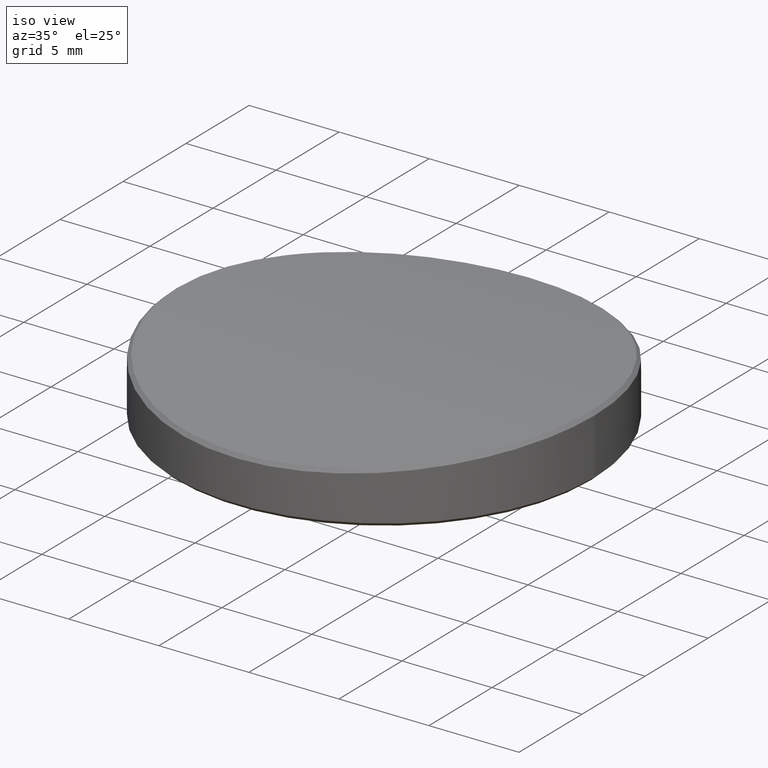
[diagram: clean part render]
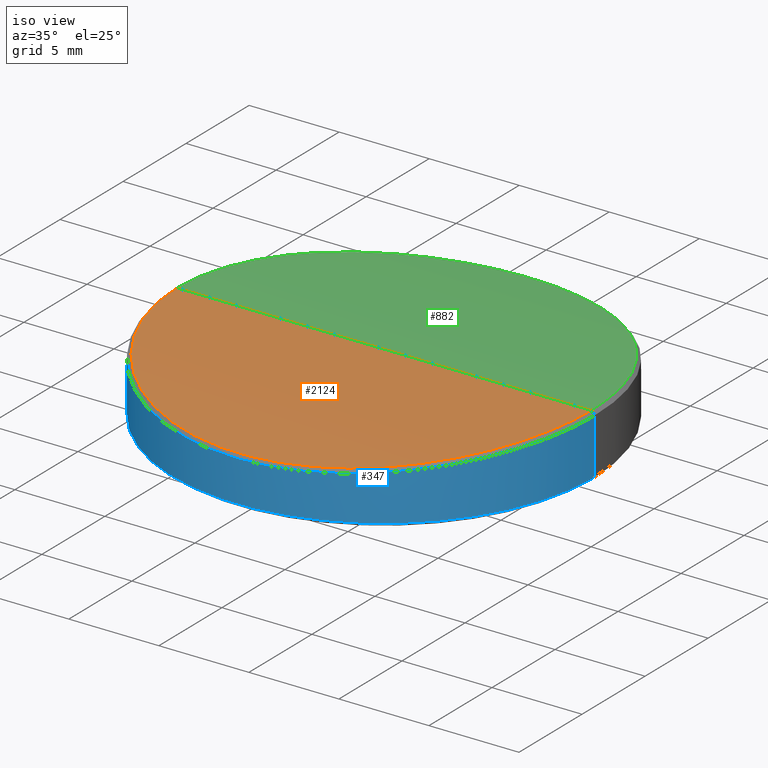
[diagram: same view with three faces highlighted in distinct colors, each labeled with its STEP entity id]
A machine part, iso view with three faces highlighted in distinct colors.
Their STEP definitions:

[orange] entity #2124 — the highlighted cylindrical surface (partial cylindrical patch) has radius 81.93 mm, axis along (-1, 0, 0).
#62 = CARTESIAN_POINT ( 'NONE',  ( -3.166787534546487315, -11.08405576851214747, 2.746504322996076830 ) ) ;
#75 = CARTESIAN_POINT ( 'NONE',  ( 3.694976091243800109, -10.92334738748209055, 2.768341207331649567 ) ) ;
#89 = CARTESIAN_POINT ( 'NONE',  ( 5.086193108349116976, -10.34108032025787693, 2.844514647406642283 ) ) ;
#104 = CARTESIAN_POINT ( 'NONE',  ( -9.145618621529175485, -7.029591892116717311, 3.200011211454527604 ) ) ;
#118 = CARTESIAN_POINT ( 'NONE',  ( -2.984743336003535585, -11.13470203556647142, 2.739567176630870016 ) ) ;
#143 = CARTESIAN_POINT ( 'NONE',  ( 10.31512535616933945, -5.110678495667301036, 3.340845388255832216 ) ) ;
#148 = VERTEX_POINT ( 'NONE', #1085 ) ;
#180 = CARTESIAN_POINT ( 'NONE',  ( 11.11120858916133081, -2.995880903165346165, 3.445709147812949791 ) ) ;
#257 = CARTESIAN_POINT ( 'NONE',  ( -11.10982310246942717, -2.983408312492825232, 3.445578503740484688 ) ) ;
#271 = CARTESIAN_POINT ( 'NONE',  ( 1.877616581813696062, -11.37965606006756580, 2.705608682983658309 ) ) ;
#276 = ORIENTED_EDGE ( 'NONE', *, *, #1288, .T. ) ;
#287 = CARTESIAN_POINT ( 'NONE',  ( -4.060779446366968415, -10.79205761989555157, 2.785950371712246465 ) ) ;
#303 = CARTESIAN_POINT ( 'NONE',  ( -5.754423608994962080, -9.988188992802237820, 2.888792633446322977 ) ) ;
#317 = CARTESIAN_POINT ( 'NONE',  ( -11.49999994336877585, -0.1894370794137846259, 3.499711432255955934 ) ) ;
#341 = CARTESIAN_POINT ( 'NONE',  ( 11.48363838108400259, -0.6641216445274203961, 3.497402897627376994 ) ) ;
#467 = CARTESIAN_POINT ( 'NONE',  ( -2.618095972084254708, -11.22701783858042468, 2.726850005739918092 ) ) ;
#468 = FACE_OUTER_BOUND ( 'NONE', #1466, .T. ) ;
#482 = CARTESIAN_POINT ( 'NONE',  ( -10.47848433368500487, -4.764806792910271760, 3.361783141797156649 ) ) ;
#494 = CARTESIAN_POINT ( 'NONE',  ( -6.080559062151471572, -9.792238414909938626, 2.912702393172920790 ) ) ;
#495 = CARTESIAN_POINT ( 'NONE',  ( 40.00000000000000000, 0.000000000000000000, -78.43028856774404289 ) ) ;
#509 = CARTESIAN_POINT ( 'NONE',  ( 6.999210375468472911, -9.154825614327062766, 2.986980769903395672 ) ) ;
#521 = CARTESIAN_POINT ( 'NONE',  ( -10.89510011129911504, -3.709116270637044188, 3.416518046638158168 ) ) ;
#528 = B_SPLINE_CURVE_WITH_KNOTS ( 'NONE', 3,
 ( #1812, #1631, #807, #1030, #625, #819 ),
 .UNSPECIFIED., .F., .F.,
 ( 4, 2, 4 ),
 ( 0.5000000000000000000, 0.5000033378842831944, 0.5000066757685662777 ),
 .UNSPECIFIED. ) ;
#558 = CARTESIAN_POINT ( 'NONE',  ( 11.34578812515183621, -1.891171919848278371, 3.478097991542052458 ) ) ;
#584 = CARTESIAN_POINT ( 'NONE',  ( 11.31351831689490872, -2.076273835732106221, 3.473608668760564289 ) ) ;
#625 = CARTESIAN_POINT ( 'NONE',  ( 11.49999999999877254, -8.109659296174740893E-05, 3.499711432255959931 ) ) ;
#667 = CARTESIAN_POINT ( 'NONE',  ( -11.40731840595100444, -1.508329513973756031, 3.486681677985403738 ) ) ;
#681 = CARTESIAN_POINT ( 'NONE',  ( -8.661288356244455144, -7.620778521943779360, 3.146260791982539828 ) ) ;
#694 = CARTESIAN_POINT ( 'NONE',  ( -11.46268467405747593, -0.9467897128733118173, 3.494454533960024811 ) ) ;
#708 = CARTESIAN_POINT ( 'NONE',  ( 6.076511657005669420, -9.794587769880095607, 2.912412592833559799 ) ) ;
#743 = CARTESIAN_POINT ( 'NONE',  ( 10.76619664654599617, -4.069540225816410839, 3.399322707548555034 ) ) ;
#807 = CARTESIAN_POINT ( 'NONE',  ( 11.49999999572943032, -0.0003356045594075980783, 3.499711431608670598 ) ) ;
#819 = CARTESIAN_POINT ( 'NONE',  ( 11.50000000000620837, 3.524304040865959383E-09, 3.499711432255959931 ) ) ;
#857 = CARTESIAN_POINT ( 'NONE',  ( -11.20113405964385045, -2.617923438579657258, 3.458079414138407692 ) ) ;
#871 = CARTESIAN_POINT ( 'NONE',  ( 4.047360437463376925, -10.79722611531312459, 2.785265053839192539 ) ) ;
#895 = CARTESIAN_POINT ( 'NONE',  ( 0.3694301487547045348, -11.52836342652834922, 2.684578976726152977 ) ) ;
#899 = ORIENTED_EDGE ( 'NONE', *, *, #1685, .T. ) ;
#907 = CARTESIAN_POINT ( 'NONE',  ( 4.571233842579812467, -10.57995346765416933, 2.813756260684078025 ) ) ;
#963 = CARTESIAN_POINT ( 'NONE',  ( 9.347743983493922215, -6.725378284198779255, 3.223812866572052016 ) ) ;
#1030 = CARTESIAN_POINT ( 'NONE',  ( 11.49999999914109949, -0.0001735275372380674897, 3.499711432112262877 ) ) ;
#1033 = CARTESIAN_POINT ( 'NONE',  ( -5.092394498289186444, -10.34312177335469052, 2.844410562694357214 ) ) ;
#1039 = VERTEX_POINT ( 'NONE', #2126 ) ;
#1049 = CARTESIAN_POINT ( 'NONE',  ( 2.613396697094242604, -11.23282164469987521, 2.726067391752054814 ) ) ;
#1062 = CARTESIAN_POINT ( 'NONE',  ( 1.501005465652977433, -11.43584657585609143, 2.697682673974215017 ) ) ;
#1063 = DIRECTION ( 'NONE',  ( 0.000000000000000000, 0.000000000000000000, 1.000000000000000000 ) ) ;
#1073 = CARTESIAN_POINT ( 'NONE',  ( -2.431217858217677108, -11.26915379031281184, 2.721005073333755409 ) ) ;
#1074 = DIRECTION ( 'NONE',  ( -1.000000000000000000, 0.000000000000000000, 0.000000000000000000 ) ) ;
#1085 = CARTESIAN_POINT ( 'NONE',  ( 11.50000000000620837, 3.524304040865959383E-09, 3.499711432255959931 ) ) ;
#1216 = B_SPLINE_CURVE_WITH_KNOTS ( 'NONE', 3,
 ( #1254, #317, #2057, #2215, #694, #667, #1447, #2043, #857, #257, #2464, #521, #1489, #482, #1829, #1433, #2259, #104, #681, #1460, #2273, #1289, #1651, #494, #303, #1033, #2410, #287, #1877, #62, #118, #467, #1073, #1242, #1865, #1841, #2031, #895, #1679, #1062, #271, #1049, #1853, #75, #871, #907, #2426, #89, #1664, #2453, #708, #1474, #509, #1279, #2070, #1550, #2486, #2102, #963, #1523, #2323, #143, #1934, #743, #1899, #180, #1752, #584, #558, #1338, #2081, #1742, #341, #2090, #2498, #2310, #1324, #1704, #2299, #1299 ),
 .UNSPECIFIED., .F., .F.,
 ( 4, 2, 2, 2, 2, 2, 2, 2, 2, 2, 2, 2, 2, 2, 2, 2, 2, 2, 2, 2, 2, 2, 2, 2, 2, 2, 2, 2, 2, 2, 2, 2, 2, 2, 2, 2, 1, 1, 1, 1, 2, 4 ),
 ( 0.000000000000000000, 0.007812500000000012143, 0.01562500000000002082, 0.03125000000000004163, 0.03906250000000004857, 0.04687500000000004857, 0.06250000000000002776, 0.07812500000000004163, 0.09375000000000004163, 0.1249999999999999861, 0.1406249999999999445, 0.1562499999999999167, 0.1718749999999998890, 0.1874999999999998335, 0.2031249999999998057, 0.2109374999999998057, 0.2187499999999997780, 0.2343749999999997780, 0.2499999999999997780, 0.2656249999999997780, 0.2812499999999998335, 0.2968749999999998335, 0.3124999999999998890, 0.3203124999999998890, 0.3281249999999998890, 0.3437499999999998890, 0.3593749999999998335, 0.3749999999999997780, 0.3906249999999998335, 0.4062499999999998335, 0.4218749999999998890, 0.4374999999999998890, 0.4531249999999999445, 0.4687499999999999445, 0.4765624999999999445, 0.4843750000000000000, 0.4921875000000000000, 0.4960937500000000000, 0.4980468750000000000, 0.4990234375000000000, 0.4995117187500000000, 0.5000000000000000000 ),
 .UNSPECIFIED. ) ;
#1242 = CARTESIAN_POINT ( 'NONE',  ( -1.877119515908945990, -11.37980304376836571, 2.705588390391212350 ) ) ;
#1254 = CARTESIAN_POINT ( 'NONE',  ( -11.50000000000001066, -9.565969038529891921E-15, 3.499711432255955046 ) ) ;
#1266 = DIRECTION ( 'NONE',  ( -1.000000000000000000, 0.000000000000000000, 0.000000000000000000 ) ) ;
#1279 = CARTESIAN_POINT ( 'NONE',  ( 7.580365659770198938, -8.677351676243821643, 3.039252650520793964 ) ) ;
#1288 = EDGE_CURVE ( 'NONE', #1039, #148, #528, .T. ) ;
#1289 = CARTESIAN_POINT ( 'NONE',  ( -7.010480558544422536, -9.146132250254602525, 2.987957450972101192 ) ) ;
#1299 = CARTESIAN_POINT ( 'NONE',  ( 11.49999998977113691, -0.0004862272129370080785, 3.499711430813152280 ) ) ;
#1324 = CARTESIAN_POINT ( 'NONE',  ( 11.49990665739987072, -0.04794207029323048486, 3.499698264279144766 ) ) ;
#1338 = CARTESIAN_POINT ( 'NONE',  ( 11.40186205212064685, -1.514849334075119458, 3.485921985912025622 ) ) ;
#1433 = CARTESIAN_POINT ( 'NONE',  ( -9.964524904556364859, -5.767196800343213248, 3.297150507622397697 ) ) ;
#1437 = ORIENTED_EDGE ( 'NONE', *, *, #1907, .T. ) ;
#1447 = CARTESIAN_POINT ( 'NONE',  ( -11.35241904262313994, -1.879186002589373183, 3.478993603849510841 ) ) ;
#1460 = CARTESIAN_POINT ( 'NONE',  ( -7.866734287869190823, -8.417265248697891167, 3.066617744171687310 ) ) ;
#1466 = EDGE_LOOP ( 'NONE', ( #1437, #276, #899 ) ) ;
#1474 = CARTESIAN_POINT ( 'NONE',  ( 6.699291789091185834, -9.377559168386854438, 2.961543735775955533 ) ) ;
#1489 = CARTESIAN_POINT ( 'NONE',  ( -10.76648809161633125, -4.068745667084343154, 3.399361847060224040 ) ) ;
#1523 = CARTESIAN_POINT ( 'NONE',  ( 9.764785375225288888, -6.100900652749945863, 3.272844819760927670 ) ) ;
#1550 = CARTESIAN_POINT ( 'NONE',  ( 8.394962880865042720, -7.888018590142882758, 3.119551631871402275 ) ) ;
#1619 = CYLINDRICAL_SURFACE ( 'NONE', #1869, 81.93000000000000682 ) ;
#1631 = CARTESIAN_POINT ( 'NONE',  ( 11.49999999317471300, -0.0004128249476444583507, 3.499711431248769156 ) ) ;
#1651 = CARTESIAN_POINT ( 'NONE',  ( -6.710184397133923007, -9.369895651791336988, 2.962433263613817314 ) ) ;
#1664 = CARTESIAN_POINT ( 'NONE',  ( 5.256660659631347876, -10.25502637728595268, 2.855425640422257327 ) ) ;
#1679 = CARTESIAN_POINT ( 'NONE',  ( 0.7467677800578864655, -11.51006673913932588, 2.687185926745384812 ) ) ;
#1685 = EDGE_CURVE ( 'NONE', #148, #2443, #2232, .T. ) ;
#1704 = CARTESIAN_POINT ( 'NONE',  ( 11.49998066309305145, -0.02421549704749657167, 3.499708712539688182 ) ) ;
#1742 = CARTESIAN_POINT ( 'NONE',  ( 11.46262843521100905, -0.9478353445170131231, 3.494446400175181378 ) ) ;
#1752 = CARTESIAN_POINT ( 'NONE',  ( 11.20251234928625017, -2.632443078550256832, 3.458249859276424143 ) ) ;
#1812 = CARTESIAN_POINT ( 'NONE',  ( 11.49999998977113691, -0.0004862272129370080785, 3.499711430813152280 ) ) ;
#1829 = CARTESIAN_POINT ( 'NONE',  ( -10.31752866029712656, -5.105463810086760645, 3.341155690233427844 ) ) ;
#1841 = CARTESIAN_POINT ( 'NONE',  ( -0.7564665888551169726, -11.50932990848840021, 2.687290402299778336 ) ) ;
#1853 = CARTESIAN_POINT ( 'NONE',  ( 2.977744192905094511, -11.14130316833385237, 2.738722509197720978 ) ) ;
#1865 = CARTESIAN_POINT ( 'NONE',  ( -1.503073090565076875, -11.43542206186411292, 2.697742439859936336 ) ) ;
#1866 = CARTESIAN_POINT ( 'NONE',  ( -11.50000000000001066, -9.565969038529891921E-15, 3.499711432255955046 ) ) ;
#1869 = AXIS2_PLACEMENT_3D ( 'NONE', #495, #1074, #1063 ) ;
#1877 = CARTESIAN_POINT ( 'NONE',  ( -3.709081679925299024, -10.91864180391541517, 2.768975877078378112 ) ) ;
#1899 = CARTESIAN_POINT ( 'NONE',  ( 10.89304653164511194, -3.714733516813355063, 3.416245013116350204 ) ) ;
#1907 = EDGE_CURVE ( 'NONE', #2443, #1039, #1216, .T. ) ;
#1934 = CARTESIAN_POINT ( 'NONE',  ( 10.47804626799489291, -4.765775121699175720, 3.361727097627750016 ) ) ;
#2031 = CARTESIAN_POINT ( 'NONE',  ( -0.3820494611248120287, -11.52791598577002219, 2.684642567504348154 ) ) ;
#2043 = CARTESIAN_POINT ( 'NONE',  ( -11.24231283374969692, -2.434069835804062887, 3.463755419037706229 ) ) ;
#2057 = CARTESIAN_POINT ( 'NONE',  ( -11.49535235266609590, -0.3786561017609924029, 3.499054410980241947 ) ) ;
#2070 = CARTESIAN_POINT ( 'NONE',  ( 7.860350353600178863, -8.423393959094143568, 3.065991764987409773 ) ) ;
#2081 = CARTESIAN_POINT ( 'NONE',  ( 11.42528328880419686, -1.325642350548989601, 3.489204007360165338 ) ) ;
#2090 = CARTESIAN_POINT ( 'NONE',  ( 11.49590188522130241, -0.3325068279319964293, 3.499132711588765599 ) ) ;
#2102 = CARTESIAN_POINT ( 'NONE',  ( 9.124675021268858544, -7.026483348437334797, 3.198372561286000337 ) ) ;
#2124 = ADVANCED_FACE ( 'NONE', ( #468 ), #1619, .T. ) ;
#2126 = CARTESIAN_POINT ( 'NONE',  ( 11.49999998977113691, -0.0004862272129370080785, 3.499711430813152280 ) ) ;
#2215 = CARTESIAN_POINT ( 'NONE',  ( -11.47676210311787059, -0.7566489803363461997, 3.496435421985919945 ) ) ;
#2232 = LINE ( 'NONE', #2246, #2316 ) ;
#2246 = CARTESIAN_POINT ( 'NONE',  ( 40.00000000000000000, 0.000000000000000000, 3.499711432255955934 ) ) ;
#2259 = CARTESIAN_POINT ( 'NONE',  ( -9.772584314281127504, -6.088426397249680377, 3.273781037497521140 ) ) ;
#2273 = CARTESIAN_POINT ( 'NONE',  ( -7.589944202678802654, -8.668895114205811936, 3.040152559097986984 ) ) ;
#2299 = CARTESIAN_POINT ( 'NONE',  ( 11.49999949188013559, -0.01122385225012842436, 3.499711367088930380 ) ) ;
#2310 = CARTESIAN_POINT ( 'NONE',  ( 11.49974096984500349, -0.08352923245412167963, 3.499674863072131714 ) ) ;
#2316 = VECTOR ( 'NONE', #1266, 1000.000000000000000 ) ;
#2323 = CARTESIAN_POINT ( 'NONE',  ( 9.957324626235028120, -5.779965457883119662, 3.296263925566414343 ) ) ;
#2410 = CARTESIAN_POINT ( 'NONE',  ( -4.752960956930777137, -10.50417460014131166, 2.823685434219382007 ) ) ;
#2426 = CARTESIAN_POINT ( 'NONE',  ( 4.744070911900204912, -10.50321309382755253, 2.823721145974962266 ) ) ;
#2443 = VERTEX_POINT ( 'NONE', #1866 ) ;
#2453 = CARTESIAN_POINT ( 'NONE',  ( 5.753448905889493759, -9.988766464844816895, 2.888721791660014304 ) ) ;
#2464 = CARTESIAN_POINT ( 'NONE',  ( -11.06007299212678063, -3.163776592276853261, 3.438805214918871922 ) ) ;
#2486 = CARTESIAN_POINT ( 'NONE',  ( 8.649167188982435306, -7.606859026761498832, 3.146334809978968305 ) ) ;
#2498 = CARTESIAN_POINT ( 'NONE',  ( 11.49897161244465771, -0.1665470367262852358, 3.499566183134102282 ) ) ;

[blue] entity #347 — the highlighted cylindrical surface (partial cylindrical patch) has radius 11.7 mm, axis along (-0, -0, -1).
#9 = CARTESIAN_POINT ( 'NONE',  ( 9.422782072769809503, -6.935512307812171429, 3.014920513373157362 ) ) ;
#13 = CARTESIAN_POINT ( 'NONE',  ( 11.69999999826619685, -0.0002467223352154989139, 3.299711431870683498 ) ) ;
#21 = CARTESIAN_POINT ( 'NONE',  ( 9.151480835313320128, -7.290037339580718090, 2.985017551209906639 ) ) ;
#23 = CARTESIAN_POINT ( 'NONE',  ( -10.28009225069569865, -5.586644214988595536, 3.115041342363033205 ) ) ;
#30 = CARTESIAN_POINT ( 'NONE',  ( 8.374304192913763600, -8.170789335600206371, 2.904170235290804758 ) ) ;
#43 = CARTESIAN_POINT ( 'NONE',  ( 8.622137057280747641, -7.909056594465320167, 2.929175433950446550 ) ) ;
#47 = CARTESIAN_POINT ( 'NONE',  ( 11.69999998959323229, -0.0004934757627967352282, 3.299711430816696822 ) ) ;
#50 = CARTESIAN_POINT ( 'NONE',  ( -10.16397257770633900, -5.796424694338750960, 3.100954646133909254 ) ) ;
#57 = CARTESIAN_POINT ( 'NONE',  ( 9.444700623074298917, -6.905699886147616873, 3.017371316008821580 ) ) ;
#70 = CARTESIAN_POINT ( 'NONE',  ( 2.376504289055284769, -11.45619666601773901, 2.520296507141075004 ) ) ;
#83 = CARTESIAN_POINT ( 'NONE',  ( 4.622779862766098979, -10.74819561030377812, 2.614055323162956412 ) ) ;
#97 = CARTESIAN_POINT ( 'NONE',  ( 7.001751100249370197, -9.373665632877372644, 2.778735763511706924 ) ) ;
#101 = CARTESIAN_POINT ( 'NONE',  ( 10.31780540272980851, -5.516612863611038087, 3.119644167423657688 ) ) ;
#112 = CARTESIAN_POINT ( 'NONE',  ( 5.164381749322640935, -10.50029515336925989, 2.645485391011714871 ) ) ;
#115 = CARTESIAN_POINT ( 'NONE',  ( 11.08027709148510631, -3.762171187997959798, 3.216203301560187189 ) ) ;
#125 = CARTESIAN_POINT ( 'NONE',  ( 4.558530745815621010, -10.77545060772242280, 2.610555176803778021 ) ) ;
#138 = CARTESIAN_POINT ( 'NONE',  ( -6.906077204896992505, -9.444425625107134792, 2.770816880541599136 ) ) ;
#142 = CARTESIAN_POINT ( 'NONE',  ( 10.22773536068070044, -5.684684527310275293, 3.108640284831654998 ) ) ;
#146 = VECTOR ( 'NONE', #1243, 1000.000000000000000 ) ;
#147 = CARTESIAN_POINT ( 'NONE',  ( -9.385921054140677455, -6.985314242279013541, 3.010808532483862265 ) ) ;
#150 = CARTESIAN_POINT ( 'NONE',  ( -4.652600857221737662, -10.73670422886201692, 2.615552219649502685 ) ) ;
#163 = CARTESIAN_POINT ( 'NONE',  ( 0.3749185917615880381, -11.70020746607320383, 2.486571529634931554 ) ) ;
#168 = DIRECTION ( 'NONE',  ( 1.000000000000000000, 0.000000000000000000, 0.000000000000000000 ) ) ;
#171 = CARTESIAN_POINT ( 'NONE',  ( -8.227512640888095419, -8.318591364703037172, 2.889696678443471001 ) ) ;
#175 = CARTESIAN_POINT ( 'NONE',  ( -2.937506295511732812, -11.32564910103266520, 2.538046553579236697 ) ) ;
#183 = CARTESIAN_POINT ( 'NONE',  ( -9.035939449072117213, -7.432493674368407355, 2.972558463010929408 ) ) ;
#187 = CARTESIAN_POINT ( 'NONE',  ( -4.167003637406237360, -10.93354907947350796, 2.590108984204844589 ) ) ;
#192 = CARTESIAN_POINT ( 'NONE',  ( -7.960815835844050170, -8.574641397157780176, 2.864024358961006822 ) ) ;
#201 = CARTESIAN_POINT ( 'NONE',  ( 9.284344436146188428, -7.120394868695645307, 2.999538729150948324 ) ) ;
#214 = CARTESIAN_POINT ( 'NONE',  ( 9.408098278909635681, -6.955418013110639563, 3.013280549471047287 ) ) ;
#217 = CARTESIAN_POINT ( 'NONE',  ( 11.66082933828005430, -0.9614339744011821676, 3.294302004064202372 ) ) ;
#219 = CARTESIAN_POINT ( 'NONE',  ( -10.30680967254053471, -5.537129282827909726, 3.118300804852156993 ) ) ;
#227 = CARTESIAN_POINT ( 'NONE',  ( 9.750493872430297415, -6.466686051688685488, 3.052178329665602430 ) ) ;
#230 = CARTESIAN_POINT ( 'NONE',  ( -10.67946896989876393, -4.780608820164453654, 3.164596987919376048 ) ) ;
#238 = CARTESIAN_POINT ( 'NONE',  ( 9.196465852057665202, -7.233068816603631213, 2.989919068896285559 ) ) ;
#251 = CARTESIAN_POINT ( 'NONE',  ( 7.772130733473483488, -8.746159448492985433, 2.846371336692499643 ) ) ;
#266 = CARTESIAN_POINT ( 'NONE',  ( 6.632158888135284869, -9.638891886493949457, 2.748742541977956755 ) ) ;
#284 = CARTESIAN_POINT ( 'NONE',  ( 10.39383043870818035, -5.372391527244682052, 3.128964571306962483 ) ) ;
#296 = CARTESIAN_POINT ( 'NONE',  ( 6.509536104482457120, -9.721939126620092964, 2.739167200208819430 ) ) ;
#300 = CARTESIAN_POINT ( 'NONE',  ( 10.93353002664698259, -4.167053672239456219, 3.197100572985765332 ) ) ;
#312 = CARTESIAN_POINT ( 'NONE',  ( 7.092614795239533088, -9.305294647236580730, 2.786340180810017664 ) ) ;
#321 = VERTEX_POINT ( 'NONE', #1889 ) ;
#335 = CARTESIAN_POINT ( 'NONE',  ( -5.473986568319835655, -10.34048471967165739, 2.665282568579383504 ) ) ;
#339 = CARTESIAN_POINT ( 'NONE',  ( 10.98376033163175869, -4.031888775158050109, 3.203621046898136981 ) ) ;
#344 = CARTESIAN_POINT ( 'NONE',  ( -9.351832853795707834, -7.030941549434833959, 3.007018103972536771 ) ) ;
#347 = ADVANCED_FACE ( 'NONE', ( #399 ), #1738, .T. ) ;
#348 = CARTESIAN_POINT ( 'NONE',  ( -7.358710254987096633, -9.096179625178288930, 2.809218021667813314 ) ) ;
#356 = CARTESIAN_POINT ( 'NONE',  ( -7.857997785643684452, -8.668441283940405029, 2.854384176132478412 ) ) ;
#360 = CARTESIAN_POINT ( 'NONE',  ( -1.338066751349779482, -11.62478010699885900, 2.497075411778924448 ) ) ;
#368 = CARTESIAN_POINT ( 'NONE',  ( -8.360981539232318127, -8.185320217857292135, 2.902804214635004154 ) ) ;
#371 = CARTESIAN_POINT ( 'NONE',  ( -7.233901561691743254, -9.195811123296106615, 2.798383980862887643 ) ) ;
#377 = LINE ( 'NONE', #1144, #1668 ) ;
#380 = CARTESIAN_POINT ( 'NONE',  ( -8.806125255012721809, -7.703983873582890496, 2.948199200884646043 ) ) ;
#383 = CARTESIAN_POINT ( 'NONE',  ( -4.438232280060156576, -10.82555731698207957, 2.604103191581343957 ) ) ;
#391 = CARTESIAN_POINT ( 'NONE',  ( -8.658056122549018241, -7.869440638810738520, 2.932872125769822258 ) ) ;
#399 = FACE_OUTER_BOUND ( 'NONE', #1424, .T. ) ;
#403 = CARTESIAN_POINT ( 'NONE',  ( 0.000000000000000000, 0.000000000000000000, 0.2000000000000005107 ) ) ;
#411 = CARTESIAN_POINT ( 'NONE',  ( 7.474709946920775394, -9.001085716059501252, 2.819449588973617082 ) ) ;
#414 = CARTESIAN_POINT ( 'NONE',  ( 11.28790801364745988, -3.080480983061342659, 3.243694501920960871 ) ) ;
#415 = CARTESIAN_POINT ( 'NONE',  ( -10.41093532591394855, -5.342450200268880067, 3.131027475144904759 ) ) ;
#421 = EDGE_CURVE ( 'NONE', #2062, #699, #2411, .T. ) ;
#436 = CARTESIAN_POINT ( 'NONE',  ( -10.77166732400207927, -4.567462533020960613, 3.176320819214001556 ) ) ;
#437 = LINE ( 'NONE', #2058, #146 ) ;
#445 = CARTESIAN_POINT ( 'NONE',  ( 7.861133473197532417, -8.665599108905617243, 2.854677069128620737 ) ) ;
#450 = CARTESIAN_POINT ( 'NONE',  ( -11.58708933531405805, -1.624358149821716113, 3.284168499230230243 ) ) ;
#460 = CARTESIAN_POINT ( 'NONE',  ( 7.148331146543664971, -9.262485099356496221, 2.791064967685037423 ) ) ;
#464 = CARTESIAN_POINT ( 'NONE',  ( 11.69999998959323229, -0.0004934757627967352282, 3.299711430816696822 ) ) ;
#487 = VERTEX_POINT ( 'NONE', #778 ) ;
#500 = B_SPLINE_CURVE_WITH_KNOTS ( 'NONE', 3,
 ( #47, #1826, #1211, #1430, #217, #1046, #612, #1239, #830, #1578, #1380, #1602, #1406, #2166, #1392, #414, #2191, #1978, #730, #2435, #115, #339, #300, #705, #1676, #691, #868, #1444, #2229, #1457, #2270, #284, #518, #2243, #1862, #101, #142, #2123, #928, #1508, #2484, #1118, #227, #1207, #1975, #1796, #2188, #2389, #57, #9, #214, #2211, #2000, #201, #238, #21, #622, #1822, #1809, #610, #1388, #2177, #1376, #996, #1611, #2200, #1171, #852, #1627, #802, #43, #1960, #1989, #1006, #30, #1586, #662, #1598, #1403, #838, #2163, #2405, #648, #2377, #1413, #445, #1220, #1427, #2012, #251, #1026, #986, #2358, #411, #2076, #1494, #514, #2026, #503, #460, #312, #2420, #97, #1453, #1056, #675, #2240, #266, #2225, #1884, #2039, #296, #1849, #865, #687, #1080, #1673, #1873, #2446, #2471, #877, #1284, #112, #902, #1689, #83, #125, #1659, #2432, #914, #1701, #1236, #715, #2266, #1043, #1483, #1069, #1859, #890, #727, #1837, #70, #2318, #1905, #1896, #2119, #2134, #1737, #163, #2306, #1125, #1305, #2332, #360, #579, #1153, #1137, #1929, #2507, #2535, #175, #1103, #1531, #738, #1759, #2521, #773, #1113, #1544, #187, #1518, #970, #383, #1943, #150, #1345, #762, #784, #949, #567, #335, #1710, #2493, #2086, #938, #2282, #530, #1319, #750, #553, #1919, #1722, #2108, #1296, #1333, #138, #925, #2481, #1505, #2294, #541, #371, #2097, #348, #1354, #1341, #1733, #957, #2314, #1746, #586, #549, #1328, #1926, #2143, #1302, #356, #780, #192, #1756, #735, #946, #2531, #171, #1111, #368, #2093, #1915, #747, #1554, #563, #2339, #391, #576, #2129, #1133, #2478, #380, #2517, #1541, #1503, #1162, #1147, #183, #1315, #1938, #2292, #2503, #344, #1902, #147, #2105, #966, #2328, #935, #1718, #2490, #1515, #2303, #759, #1527, #614, #50, #2003, #23, #1981, #219, #1590, #415, #1789, #1213, #230, #978, #436, #1566, #1766, #654, #1227, #2205, #2168, #2543, #1419, #638, #821, #1009, #2369, #1802, #2396, #2361, #627, #1199, #450, #600, #1188, #1617, #2017, #1020, #792 ),
 .UNSPECIFIED., .F., .F.,
 ( 4, 1, 2, 2, 1, 1, 2, 2, 2, 1, 2, 2, 2, 1, 1, 2, 2, 2, 1, 1, 1, 2, 2, 2, 1, 1, 1, 2, 2, 1, 1, 1, 2, 2, 2, 1, 1, 2, 2, 2, 1, 1, 1, 1, 2, 2, 2, 2, 2, 2, 2, 2, 1, 1, 1, 2, 2, 2, 1, 1, 2, 2, 2, 1, 1, 2, 2, 1, 1, 1, 2, 2, 2, 1, 1, 1, 2, 2, 2, 1, 1, 2, 2, 2, 1, 2, 2, 2, 1, 2, 2, 2, 2, 2, 2, 2, 1, 2, 2, 2, 1, 1, 2, 2, 2, 1, 1, 2, 2, 2, 1, 1, 1, 2, 2, 2, 1, 1, 1, 2, 2, 1, 1, 1, 2, 2, 2, 1, 1, 2, 2, 2, 1, 1, 1, 1, 2, 2, 2, 2, 2, 2, 2, 2, 1, 1, 1, 2, 2, 2, 1, 1, 2, 2, 2, 1, 1, 2, 2, 1, 1, 1, 2, 2, 2, 1, 1, 1, 2, 2, 2, 1, 1, 2, 2, 2, 1, 2, 2, 2, 2, 2, 2, 2, 2, 4 ),
 ( 0.5000000000000000000, 0.5078124999999951150, 0.5117187499999926725, 0.5156249999999902300, 0.5234374999999853451, 0.5273437499999829026, 0.5292968749999816813, 0.5312499999999804601, 0.5390624999999754641, 0.5429687499999730216, 0.5449218749999718003, 0.5468749999999706901, 0.5546874999999656941, 0.5585937499999632516, 0.5605468749999620304, 0.5615234374999614753, 0.5624999999999608091, 0.5703124999999561462, 0.5742187499999537037, 0.5761718749999524825, 0.5771484374999519273, 0.5776367187499517053, 0.5781249999999513722, 0.5859374999999473754, 0.5898437499999453770, 0.5917968749999444888, 0.5927734374999439337, 0.5932617187499437117, 0.5937499999999433786, 0.5976562499999416023, 0.5996093749999407141, 0.6005859374999402700, 0.6010742187499400480, 0.6015624999999398259, 0.6054687499999381606, 0.6074218749999373834, 0.6083984374999369393, 0.6088867187499367173, 0.6093749999999363842, 0.6132812499999342748, 0.6152343749999331646, 0.6162109374999326095, 0.6166992187499323874, 0.6169433593749322764, 0.6170654296874321654, 0.6171874999999321654, 0.6210937499999337197, 0.6230468749999343858, 0.6240234374999347189, 0.6249999999999351630, 0.6289062499999366063, 0.6308593749999372724, 0.6318359374999376055, 0.6323242187499377165, 0.6325683593749378275, 0.6326904296874378275, 0.6328124999999379385, 0.6367187499999391598, 0.6386718749999397149, 0.6396484374999400480, 0.6401367187499401590, 0.6406249999999402700, 0.6445312499999414912, 0.6464843749999420464, 0.6474609374999423794, 0.6479492187499424904, 0.6484374999999427125, 0.6523437499999438227, 0.6542968749999444888, 0.6552734374999447109, 0.6557617187499448219, 0.6562499999999449329, 0.6640624999999464873, 0.6679687499999471534, 0.6699218749999475975, 0.6708984374999478195, 0.6713867187499479305, 0.6718749999999480416, 0.6796874999999493738, 0.6835937499999500400, 0.6855468749999503730, 0.6865234374999504841, 0.6874999999999507061, 0.6953124999999520384, 0.6992187499999527045, 0.7011718749999531486, 0.7031249999999533706, 0.7109374999999547029, 0.7148437499999553690, 0.7167968749999557021, 0.7187499999999560352, 0.7265624999999573674, 0.7343749999999586997, 0.7499999999999613642, 0.7578124999999626965, 0.7656249999999639178, 0.7734374999999652500, 0.7773437499999659162, 0.7812499999999665823, 0.7890624999999679146, 0.7929687499999684697, 0.7949218749999689138, 0.7958984374999690248, 0.7968749999999691358, 0.8046874999999704681, 0.8085937499999711342, 0.8105468749999714673, 0.8115234374999715783, 0.8124999999999718003, 0.8203124999999730216, 0.8242187499999735767, 0.8261718749999739098, 0.8271484374999740208, 0.8276367187499740208, 0.8281249999999740208, 0.8359374999999745759, 0.8398437499999747979, 0.8417968749999749090, 0.8427734374999749090, 0.8432617187499749090, 0.8437499999999750200, 0.8476562499999746869, 0.8496093749999746869, 0.8505859374999745759, 0.8510742187499745759, 0.8515624999999744649, 0.8554687499999741318, 0.8574218749999739098, 0.8583984374999737987, 0.8588867187499737987, 0.8593749999999735767, 0.8632812499999731326, 0.8652343749999729106, 0.8662109374999726885, 0.8666992187499726885, 0.8669433593749726885, 0.8670654296874726885, 0.8671874999999727995, 0.8710937499999726885, 0.8730468749999726885, 0.8740234374999725775, 0.8749999999999724665, 0.8789062499999720224, 0.8808593749999719114, 0.8818359374999718003, 0.8823242187499718003, 0.8825683593749718003, 0.8826904296874718003, 0.8828124999999718003, 0.8867187499999722444, 0.8886718749999723554, 0.8896484374999724665, 0.8901367187499724665, 0.8906249999999726885, 0.8945312499999731326, 0.8964843749999734657, 0.8974609374999735767, 0.8979492187499735767, 0.8984374999999737987, 0.9023437499999744649, 0.9042968749999749090, 0.9052734374999751310, 0.9057617187499752420, 0.9062499999999753530, 0.9140624999999769074, 0.9179687499999776845, 0.9199218749999780176, 0.9208984374999782396, 0.9213867187499782396, 0.9218749999999784617, 0.9296874999999802380, 0.9335937499999811262, 0.9355468749999815703, 0.9365234374999817923, 0.9374999999999820144, 0.9453124999999842348, 0.9492187499999853451, 0.9511718749999860112, 0.9531249999999864553, 0.9609374999999887867, 0.9648437499999900080, 0.9687499999999911182, 0.9765624999999933387, 0.9804687499999944489, 0.9843749999999955591, 1.000000000000000000 ),
 .UNSPECIFIED. ) ;
#503 = CARTESIAN_POINT ( 'NONE',  ( 7.261089485882514794, -9.174729045797262117, 2.800702525778298924 ) ) ;
#514 = CARTESIAN_POINT ( 'NONE',  ( 7.426384009105366779, -9.040961324074404004, 2.815170331897737022 ) ) ;
#518 = CARTESIAN_POINT ( 'NONE',  ( 10.35351276048579727, -5.449390667958918577, 3.124014740927337108 ) ) ;
#530 = CARTESIAN_POINT ( 'NONE',  ( -6.211279391989757315, -9.916011599454005676, 2.716516593156360848 ) ) ;
#541 = CARTESIAN_POINT ( 'NONE',  ( -7.121102486533028575, -9.283802855221761519, 2.788729068977571224 ) ) ;
#546 = CARTESIAN_POINT ( 'NONE',  ( 11.69999998959323229, -0.0004934757627967352282, 3.299711430816696822 ) ) ;
#549 = CARTESIAN_POINT ( 'NONE',  ( -7.791305167654128283, -8.728501372068775410, 2.848178002646988283 ) ) ;
#553 = CARTESIAN_POINT ( 'NONE',  ( -6.464180123430022462, -9.752155516901005683, 2.735665387930334536 ) ) ;
#563 = CARTESIAN_POINT ( 'NONE',  ( -8.626647995568513139, -7.903893342527865684, 2.929646950012666728 ) ) ;
#567 = CARTESIAN_POINT ( 'NONE',  ( -5.441201122693164471, -10.35781821527588775, 2.663146833974949779 ) ) ;
#576 = CARTESIAN_POINT ( 'NONE',  ( -8.662333881154843596, -7.864729885416723576, 2.933312110915358595 ) ) ;
#579 = CARTESIAN_POINT ( 'NONE',  ( -1.621819373447006329, -11.58982306493217429, 2.501928411825979470 ) ) ;
#586 = CARTESIAN_POINT ( 'NONE',  ( -7.724600161342991100, -8.787776391921408248, 2.842016280178647492 ) ) ;
#593 = DIRECTION ( 'NONE',  ( -0.000000000000000000, -0.000000000000000000, -1.000000000000000000 ) ) ;
#600 = CARTESIAN_POINT ( 'NONE',  ( -11.59997538057081101, -1.529601157498384323, 3.285934982204576471 ) ) ;
#610 = CARTESIAN_POINT ( 'NONE',  ( 9.048245048133580326, -7.417504653799454672, 2.973879123371472755 ) ) ;
#612 = CARTESIAN_POINT ( 'NONE',  ( 11.62419314537918780, -1.343293778984359532, 3.289258654479871424 ) ) ;
#614 = CARTESIAN_POINT ( 'NONE',  ( -10.09328591346894832, -5.918163209542283809, 3.092475966215553651 ) ) ;
#622 = CARTESIAN_POINT ( 'NONE',  ( 9.097116028402954413, -7.357552054183033263, 2.979138660680794803 ) ) ;
#627 = CARTESIAN_POINT ( 'NONE',  ( -11.51257891121424137, -2.094585789661122188, 3.273986265026695985 ) ) ;
#638 = CARTESIAN_POINT ( 'NONE',  ( -11.18235965883911298, -3.441975901691406659, 3.229673256169133921 ) ) ;
#648 = CARTESIAN_POINT ( 'NONE',  ( 7.914088693923373441, -8.617284226195737418, 2.859641521139799636 ) ) ;
#654 = CARTESIAN_POINT ( 'NONE',  ( -10.88295425581061515, -4.300043699612304593, 3.190551796240323146 ) ) ;
#662 = CARTESIAN_POINT ( 'NONE',  ( 8.312739507963371466, -8.233421951621878065, 2.898069462002347940 ) ) ;
#675 = CARTESIAN_POINT ( 'NONE',  ( 6.885875506654054234, -9.459631566270914504, 2.769125622846765111 ) ) ;
#687 = CARTESIAN_POINT ( 'NONE',  ( 5.917771465253325758, -10.09351766185897148, 2.695356349555216191 ) ) ;
#691 = CARTESIAN_POINT ( 'NONE',  ( 10.82555021522296457, -4.438249570623107765, 3.183209131588520702 ) ) ;
#699 = VERTEX_POINT ( 'NONE', #1765 ) ;
#705 = CARTESIAN_POINT ( 'NONE',  ( 10.87138836772619044, -4.325166905227189496, 3.189091996903971715 ) ) ;
#715 = CARTESIAN_POINT ( 'NONE',  ( 3.706598339890087246, -11.09804622061482249, 2.568494680813052433 ) ) ;
#727 = CARTESIAN_POINT ( 'NONE',  ( 2.606839133096695793, -11.40657758129035493, 2.527070855749035783 ) ) ;
#730 = CARTESIAN_POINT ( 'NONE',  ( 11.20699553337922438, -3.360864622517830913, 3.232936115460675719 ) ) ;
#735 = CARTESIAN_POINT ( 'NONE',  ( -8.102319457431750749, -8.440711247237603132, 2.877547804682102583 ) ) ;
#738 = CARTESIAN_POINT ( 'NONE',  ( -3.312016001170593693, -11.22145925564243107, 2.552055429661064245 ) ) ;
#742 = EDGE_CURVE ( 'NONE', #321, #1259, #2508, .T. ) ;
#747 = CARTESIAN_POINT ( 'NONE',  ( -8.565791490856369705, -7.969871771777759406, 2.923430222198164063 ) ) ;
#750 = CARTESIAN_POINT ( 'NONE',  ( -6.432411052126031592, -9.773188534390802928, 2.733223238879661565 ) ) ;
#759 = CARTESIAN_POINT ( 'NONE',  ( -9.842080154946270198, -6.329632529569966692, 3.062742365366165398 ) ) ;
#762 = CARTESIAN_POINT ( 'NONE',  ( -5.082394570535584855, -10.53889773696495880, 2.640615514295113542 ) ) ;
#773 = CARTESIAN_POINT ( 'NONE',  ( -3.583408937027225960, -11.13928440921765350, 2.563032270532551671 ) ) ;
#778 = CARTESIAN_POINT ( 'NONE',  ( -11.69999999999999929, 0.000000000000000000, 3.299711432255976185 ) ) ;
#780 = CARTESIAN_POINT ( 'NONE',  ( -7.903681581046782867, -8.627015334641320976, 2.858651605733915968 ) ) ;
#784 = CARTESIAN_POINT ( 'NONE',  ( -5.212346774350687717, -10.47559375100730250, 2.648551024732475945 ) ) ;
#792 = CARTESIAN_POINT ( 'NONE',  ( -11.69999999999999929, 0.000000000000000000, 3.299711432255976185 ) ) ;
#802 = CARTESIAN_POINT ( 'NONE',  ( 8.668213537867135443, -7.858249065911990350, 2.933917086677998221 ) ) ;
#821 = CARTESIAN_POINT ( 'NONE',  ( -11.25293517884145267, -3.209252283648073245, 3.239021838453296720 ) ) ;
#830 = CARTESIAN_POINT ( 'NONE',  ( 11.53506057432876553, -1.961825598810464255, 3.277053497158902040 ) ) ;
#838 = CARTESIAN_POINT ( 'NONE',  ( 8.094469867594956014, -8.448597577042086471, 2.876773988715778607 ) ) ;
#852 = CARTESIAN_POINT ( 'NONE',  ( 8.675681707571078149, -7.850003680217019664, 2.934686049030227561 ) ) ;
#865 = CARTESIAN_POINT ( 'NONE',  ( 6.163702584429747944, -9.946619630386804189, 2.712926804913538437 ) ) ;
#868 = CARTESIAN_POINT ( 'NONE',  ( 10.81570574400551443, -4.462179157037220456, 3.181948247101204608 ) ) ;
#877 = CARTESIAN_POINT ( 'NONE',  ( 5.527594279934029409, -10.31192795389843120, 2.668795391835602882 ) ) ;
#890 = CARTESIAN_POINT ( 'NONE',  ( 2.745450627764116636, -11.37372403114273567, 2.531535667964629699 ) ) ;
#902 = CARTESIAN_POINT ( 'NONE',  ( 4.903281325893298792, -10.62342183711527888, 2.629957098572946794 ) ) ;
#914 = CARTESIAN_POINT ( 'NONE',  ( 4.291802754423352795, -10.88617989037821054, 2.596290158386432623 ) ) ;
#925 = CARTESIAN_POINT ( 'NONE',  ( -6.936128161026837269, -9.422328884166461194, 2.773294860283983088 ) ) ;
#928 = CARTESIAN_POINT ( 'NONE',  ( 9.989382594652598257, -6.091909426460001775, 3.080110525497829155 ) ) ;
#935 = CARTESIAN_POINT ( 'NONE',  ( -9.639216148044535970, -6.631691385956825613, 3.039379169657358215 ) ) ;
#938 = CARTESIAN_POINT ( 'NONE',  ( -5.838931792390976483, -10.14070244980562485, 2.689715572946691058 ) ) ;
#946 = CARTESIAN_POINT ( 'NONE',  ( -8.163125363847292704, -8.381776722837059879, 2.883429329113695427 ) ) ;
#949 = CARTESIAN_POINT ( 'NONE',  ( -5.364790823816235843, -10.39775226164727329, 2.658214072229642344 ) ) ;
#957 = CARTESIAN_POINT ( 'NONE',  ( -7.492291558835987075, -8.986805319442787265, 2.820991672428514008 ) ) ;
#966 = CARTESIAN_POINT ( 'NONE',  ( -9.458926562862517429, -6.886850334137051277, 3.018947827975765552 ) ) ;
#970 = CARTESIAN_POINT ( 'NONE',  ( -4.392979055313787740, -10.84399981623969822, 2.601721063102242493 ) ) ;
#978 = CARTESIAN_POINT ( 'NONE',  ( -10.74455106619745592, -4.631238633091660617, 3.172863816930973524 ) ) ;
#986 = CARTESIAN_POINT ( 'NONE',  ( 7.587529158599892298, -8.906272235090588296, 2.829547858735511845 ) ) ;
#996 = CARTESIAN_POINT ( 'NONE',  ( 8.787318239058100389, -7.725121671733133688, 2.946246921470887958 ) ) ;
#1006 = CARTESIAN_POINT ( 'NONE',  ( 8.432264012424019128, -8.111103497898612957, 2.909947557533222984 ) ) ;
#1009 = CARTESIAN_POINT ( 'NONE',  ( -11.30427453635981472, -3.023236935128554403, 3.245875205910050632 ) ) ;
#1014 = CARTESIAN_POINT ( 'NONE',  ( -11.69999999999999929, 0.000000000000000000, 0.2000000000000005107 ) ) ;
#1020 = CARTESIAN_POINT ( 'NONE',  ( -11.70000000000000284, -0.3830310799694303658, 3.299711416377828943 ) ) ;
#1026 = CARTESIAN_POINT ( 'NONE',  ( 7.696283045318141447, -8.812852133046652270, 2.839404921535149118 ) ) ;
#1043 = CARTESIAN_POINT ( 'NONE',  ( 3.483375917070888228, -11.16952463655142047, 2.558992451403548252 ) ) ;
#1046 = CARTESIAN_POINT ( 'NONE',  ( 11.65237519933069166, -1.058880696045444436, 3.293137355117908616 ) ) ;
#1056 = CARTESIAN_POINT ( 'NONE',  ( 6.975859836717775764, -9.392951314453727107, 2.776582893909469885 ) ) ;
#1069 = CARTESIAN_POINT ( 'NONE',  ( 3.208611745544739602, -11.25311039870357277, 2.547830856705763480 ) ) ;
#1080 = CARTESIAN_POINT ( 'NONE',  ( 5.795813074061208603, -10.16432305347353626, 2.686820844177363998 ) ) ;
#1088 = ORIENTED_EDGE ( 'NONE', *, *, #2287, .F. ) ;
#1103 = CARTESIAN_POINT ( 'NONE',  ( -3.077798749156496871, -11.28865332750999784, 2.543041064508505311 ) ) ;
#1111 = CARTESIAN_POINT ( 'NONE',  ( -8.251010271141154817, -8.295287636124413666, 2.891996258327065750 ) ) ;
#1113 = CARTESIAN_POINT ( 'NONE',  ( -3.762260821337326533, -11.08024531538001334, 2.570865714266133306 ) ) ;
#1118 = CARTESIAN_POINT ( 'NONE',  ( 9.771363715269764327, -6.435181351693147533, 3.054591679162195206 ) ) ;
#1120 = DIRECTION ( 'NONE',  ( -0.000000000000000000, -0.000000000000000000, 1.000000000000000000 ) ) ;
#1125 = CARTESIAN_POINT ( 'NONE',  ( -0.3887474394326260185, -11.69508752972397403, 2.487287023988917323 ) ) ;
#1128 = EDGE_CURVE ( 'NONE', #487, #2062, #377, .T. ) ;
#1133 = CARTESIAN_POINT ( 'NONE',  ( -8.665738993934260392, -7.860978228149092750, 2.933662412937356745 ) ) ;
#1137 = CARTESIAN_POINT ( 'NONE',  ( -2.095851239772147601, -11.51115420025748826, 2.512765615816726417 ) ) ;
#1139 = DIRECTION ( 'NONE',  ( -1.000000000000000000, 0.000000000000000000, 0.000000000000000000 ) ) ;
#1144 = CARTESIAN_POINT ( 'NONE',  ( -11.69999999999999929, 0.000000000000000000, 7.000000000000000000 ) ) ;
#1147 = CARTESIAN_POINT ( 'NONE',  ( -9.030403277702159670, -7.439216016227407025, 2.971965025474888389 ) ) ;
#1153 = CARTESIAN_POINT ( 'NONE',  ( -1.906193846277994153, -11.54407590332685984, 2.508236696297204027 ) ) ;
#1162 = CARTESIAN_POINT ( 'NONE',  ( -9.016556709964183014, -7.455992448361800307, 2.970482065666592675 ) ) ;
#1168 = CARTESIAN_POINT ( 'NONE',  ( 0.000000000000000000, 0.000000000000000000, 7.000000000000000000 ) ) ;
#1171 = CARTESIAN_POINT ( 'NONE',  ( 8.682306956539282083, -7.842679491718511642, 2.935368606210007059 ) ) ;
#1188 = CARTESIAN_POINT ( 'NONE',  ( -11.62338448416041992, -1.340164789959832126, 3.289148469672903641 ) ) ;
#1199 = CARTESIAN_POINT ( 'NONE',  ( -11.54485825107001062, -1.908654661394957319, 3.278389832586658503 ) ) ;
#1207 = CARTESIAN_POINT ( 'NONE',  ( 9.736521591815142429, -6.487704258019410197, 3.050564277128389179 ) ) ;
#1211 = CARTESIAN_POINT ( 'NONE',  ( 11.69289877747749529, -0.4806475219926051312, 3.298726297201041380 ) ) ;
#1213 = CARTESIAN_POINT ( 'NONE',  ( -10.62052274386061335, -4.909542306338866346, 3.157167436735953903 ) ) ;
#1220 = CARTESIAN_POINT ( 'NONE',  ( 7.856762323920844615, -8.669561095345406088, 2.854268817327799024 ) ) ;
#1227 = CARTESIAN_POINT ( 'NONE',  ( -10.95307474330911646, -4.117915167036827029, 3.199619335552636112 ) ) ;
#1236 = CARTESIAN_POINT ( 'NONE',  ( 3.841195868332845542, -11.05189280357042136, 2.574588970420205847 ) ) ;
#1239 = CARTESIAN_POINT ( 'NONE',  ( 11.58891934250656774, -1.628460321208330841, 3.284409407644757639 ) ) ;
#1243 = DIRECTION ( 'NONE',  ( -0.000000000000000000, -0.000000000000000000, -1.000000000000000000 ) ) ;
#1259 = VERTEX_POINT ( 'NONE', #464 ) ;
#1284 = CARTESIAN_POINT ( 'NONE',  ( 5.339958123454767502, -10.41224997910211236, 2.656464337561479372 ) ) ;
#1296 = CARTESIAN_POINT ( 'NONE',  ( -6.698221316538249148, -9.593747827346655654, 2.753934369232300838 ) ) ;
#1302 = CARTESIAN_POINT ( 'NONE',  ( -7.854474213094547075, -8.671634549061669972, 2.854055139120574403 ) ) ;
#1305 = CARTESIAN_POINT ( 'NONE',  ( -0.7687912509416839901, -11.67626468148294272, 2.489912923013926083 ) ) ;
#1315 = CARTESIAN_POINT ( 'NONE',  ( -9.109047293746934670, -7.343415417708048842, 2.980405559053580955 ) ) ;
#1318 = EDGE_CURVE ( 'NONE', #1259, #487, #500, .T. ) ;
#1319 = CARTESIAN_POINT ( 'NONE',  ( -6.358457719249438256, -9.821632131940566168, 2.727580376470676971 ) ) ;
#1328 = CARTESIAN_POINT ( 'NONE',  ( -7.825174028818184802, -8.698100468220854253, 2.851324026530786426 ) ) ;
#1333 = CARTESIAN_POINT ( 'NONE',  ( -6.836309662815973631, -9.495214088959118115, 2.765101120221852504 ) ) ;
#1341 = CARTESIAN_POINT ( 'NONE',  ( -7.407534315317278129, -9.056411802543159695, 2.813507870197198724 ) ) ;
#1345 = CARTESIAN_POINT ( 'NONE',  ( -4.823615814002341295, -10.66110363903125524, 2.625207295691144527 ) ) ;
#1354 = CARTESIAN_POINT ( 'NONE',  ( -7.387973543796956477, -9.072376000034514831, 2.811787149258689666 ) ) ;
#1376 = CARTESIAN_POINT ( 'NONE',  ( 8.835670888236185405, -7.669628640467087699, 2.951310469834906858 ) ) ;
#1380 = CARTESIAN_POINT ( 'NONE',  ( 11.49138990447022124, -2.200070053285937188, 3.271111805160361818 ) ) ;
#1388 = CARTESIAN_POINT ( 'NONE',  ( 8.987325907951355219, -7.491678877109816170, 2.967342225023331448 ) ) ;
#1392 = CARTESIAN_POINT ( 'NONE',  ( 11.32460750847092790, -2.941490891818102860, 3.248605674561074963 ) ) ;
#1403 = CARTESIAN_POINT ( 'NONE',  ( 8.176336093400278671, -8.369867786647654739, 2.884661702745326295 ) ) ;
#1406 = CARTESIAN_POINT ( 'NONE',  ( 11.43584179389414679, -2.479250755881219348, 3.263574524925681786 ) ) ;
#1413 = CARTESIAN_POINT ( 'NONE',  ( 7.871590401994562392, -8.656106583530275955, 2.855654587306094783 ) ) ;
#1419 = CARTESIAN_POINT ( 'NONE',  ( -11.16896349005713773, -3.485180060378295863, 3.227901791934507880 ) ) ;
#1424 = EDGE_LOOP ( 'NONE', ( #1088, #1656, #2237, #2263, #1846 ) ) ;
#1427 = CARTESIAN_POINT ( 'NONE',  ( 7.853872790817799654, -8.672178848833810960, 2.853999023807460400 ) ) ;
#1430 = CARTESIAN_POINT ( 'NONE',  ( 11.67509043625020837, -0.7691290197389392125, 3.296268244720148122 ) ) ;
#1444 = CARTESIAN_POINT ( 'NONE',  ( 10.73604008713642166, -4.654201516234950375, 3.171756671485812085 ) ) ;
#1453 = CARTESIAN_POINT ( 'NONE',  ( 6.983761571257263157, -9.387076231855147057, 2.777239161363044939 ) ) ;
#1457 = CARTESIAN_POINT ( 'NONE',  ( 10.53633429465785198, -5.087722329342747152, 3.146620759124002298 ) ) ;
#1483 = CARTESIAN_POINT ( 'NONE',  ( 3.440826809512830931, -11.18271282172304026, 2.557233990059283979 ) ) ;
#1494 = CARTESIAN_POINT ( 'NONE',  ( 7.433011503988744550, -9.035510823457149954, 2.815756036929369710 ) ) ;
#1503 = CARTESIAN_POINT ( 'NONE',  ( -8.995599066913044339, -7.481313144194960962, 2.968240003242188063 ) ) ;
#1505 = CARTESIAN_POINT ( 'NONE',  ( -6.967385184734253833, -9.399237592240265116, 2.775880075110952028 ) ) ;
#1508 = CARTESIAN_POINT ( 'NONE',  ( 9.913158488928408119, -6.215811305219846261, 3.071106389486335964 ) ) ;
#1511 = CARTESIAN_POINT ( 'NONE',  ( 11.69999999999999574, -8.224607233350306353E-05, 3.299711432011774193 ) ) ;
#1515 = CARTESIAN_POINT ( 'NONE',  ( -9.717190962343762450, -6.516619674868643131, 3.048334922440379735 ) ) ;
#1518 = CARTESIAN_POINT ( 'NONE',  ( -4.325125869312053339, -10.87140475426909525, 2.598176763625342556 ) ) ;
#1527 = CARTESIAN_POINT ( 'NONE',  ( -9.946718395967748094, -6.163529700955368895, 3.075028161560550366 ) ) ;
#1531 = CARTESIAN_POINT ( 'NONE',  ( -3.241721176955329575, -11.24212669905652717, 2.549288103655821036 ) ) ;
#1541 = CARTESIAN_POINT ( 'NONE',  ( -8.945373040054231950, -7.541477376933745980, 2.962885165268198673 ) ) ;
#1544 = CARTESIAN_POINT ( 'NONE',  ( -4.031868296874089097, -10.98376751032423471, 2.583540463602591597 ) ) ;
#1554 = CARTESIAN_POINT ( 'NONE',  ( -8.607014977979082104, -7.925257292334148218, 2.927637958450403755 ) ) ;
#1566 = CARTESIAN_POINT ( 'NONE',  ( -10.78957396367908395, -4.524999957107478821, 3.178606393083524218 ) ) ;
#1578 = CARTESIAN_POINT ( 'NONE',  ( 11.50922687556920110, -2.104767660004646324, 3.273537009269632314 ) ) ;
#1586 = CARTESIAN_POINT ( 'NONE',  ( 8.354268896570037128, -8.191279897824669476, 2.902179771000790165 ) ) ;
#1590 = CARTESIAN_POINT ( 'NONE',  ( -10.31154603682970894, -5.528306434653406320, 3.118879260506312256 ) ) ;
#1598 = CARTESIAN_POINT ( 'NONE',  ( 8.292174935521829937, -8.254144853108114077, 2.896040927284019073 ) ) ;
#1602 = CARTESIAN_POINT ( 'NONE',  ( 11.48182662043912572, -2.249412161770258045, 3.269812972239150906 ) ) ;
#1611 = CARTESIAN_POINT ( 'NONE',  ( 8.728040600970128793, -7.791821196770164271, 2.940092482733355883 ) ) ;
#1617 = CARTESIAN_POINT ( 'NONE',  ( -11.63378031558307768, -1.246772572084936304, 3.290577961251018646 ) ) ;
#1627 = CARTESIAN_POINT ( 'NONE',  ( 8.671256088417472085, -7.854892024693088004, 2.934230275893572326 ) ) ;
#1643 = AXIS2_PLACEMENT_3D ( 'NONE', #1168, #593, #1139 ) ;
#1656 = ORIENTED_EDGE ( 'NONE', *, *, #742, .T. ) ;
#1659 = CARTESIAN_POINT ( 'NONE',  ( 4.515756883676480093, -10.79344607285089275, 2.608241331884864955 ) ) ;
#1668 = VECTOR ( 'NONE', #1935, 1000.000000000000000 ) ;
#1673 = CARTESIAN_POINT ( 'NONE',  ( 5.655493800265074533, -10.24250985500565037, 2.677299768597166896 ) ) ;
#1676 = CARTESIAN_POINT ( 'NONE',  ( 10.84398845918650345, -4.393007057868232756, 3.185573745043768668 ) ) ;
#1689 = CARTESIAN_POINT ( 'NONE',  ( 4.773295784471989656, -10.68275032091247212, 2.622427984200031759 ) ) ;
#1701 = CARTESIAN_POINT ( 'NONE',  ( 4.111039677705704776, -10.95563022972048906, 2.587239846059751436 ) ) ;
#1710 = CARTESIAN_POINT ( 'NONE',  ( -5.495851771405046549, -10.32888021494358100, 2.666711212505990858 ) ) ;
#1718 = CARTESIAN_POINT ( 'NONE',  ( -9.685027654565592670, -6.564386784148128484, 3.044633600756925684 ) ) ;
#1722 = CARTESIAN_POINT ( 'NONE',  ( -6.497110155622847216, -9.730246136858536232, 2.738205497112026432 ) ) ;
#1733 = CARTESIAN_POINT ( 'NONE',  ( -7.419032725562909825, -9.046992008174138178, 2.814521654018106833 ) ) ;
#1737 = CARTESIAN_POINT ( 'NONE',  ( 0.7601489686200914031, -11.68163072635103283, 2.489172905892083953 ) ) ;
#1738 = CYLINDRICAL_SURFACE ( 'NONE', #1643, 11.69999999999999929 ) ;
#1746 = CARTESIAN_POINT ( 'NONE',  ( -7.669238906491698593, -8.836008097019359298, 2.836958218575943658 ) ) ;
#1756 = CARTESIAN_POINT ( 'NONE',  ( -8.064677641605019431, -8.476629076615031622, 2.873935448312919139 ) ) ;
#1759 = CARTESIAN_POINT ( 'NONE',  ( -3.358887423585159127, -11.20751859662675898, 2.553920318889788987 ) ) ;
#1765 = CARTESIAN_POINT ( 'NONE',  ( 11.69999999999999929, 1.432836755002403087E-15, 0.2000000000000005107 ) ) ;
#1766 = CARTESIAN_POINT ( 'NONE',  ( -10.79775895924229800, -4.505442477006295299, 3.179652266628554713 ) ) ;
#1789 = CARTESIAN_POINT ( 'NONE',  ( -10.49826398576771425, -5.168451347115466277, 3.141850070709229392 ) ) ;
#1796 = CARTESIAN_POINT ( 'NONE',  ( 9.671901496090075767, -6.584267716904728118, 3.043114097073556401 ) ) ;
#1802 = CARTESIAN_POINT ( 'NONE',  ( -11.39581753919866003, -2.652231602241582387, 3.258174569489761030 ) ) ;
#1809 = CARTESIAN_POINT ( 'NONE',  ( 9.057510835566260354, -7.406190353358011791, 2.974874507805672419 ) ) ;
#1822 = CARTESIAN_POINT ( 'NONE',  ( 9.073407823765588631, -7.386706204405516729, 2.976584753333673561 ) ) ;
#1826 = CARTESIAN_POINT ( 'NONE',  ( 11.69999189706992304, -0.1923621141434226633, 3.299710424172855205 ) ) ;
#1837 = CARTESIAN_POINT ( 'NONE',  ( 2.468585529971083936, -11.43670844988153057, 2.522959163872398936 ) ) ;
#1846 = ORIENTED_EDGE ( 'NONE', *, *, #421, .T. ) ;
#1849 = CARTESIAN_POINT ( 'NONE',  ( 6.330348651266028526, -9.841637025103098679, 2.725306367955913522 ) ) ;
#1859 = CARTESIAN_POINT ( 'NONE',  ( 3.023047431732265089, -11.30431661666611554, 2.540936119514424441 ) ) ;
#1862 = CARTESIAN_POINT ( 'NONE',  ( 10.32429703136577892, -5.504456963762903499, 3.120437843666858502 ) ) ;
#1873 = CARTESIAN_POINT ( 'NONE',  ( 5.585849213231051102, -10.28052428318546774, 2.672648484313892236 ) ) ;
#1884 = CARTESIAN_POINT ( 'NONE',  ( 6.536832855157174826, -9.703604821561723881, 2.741286683772694577 ) ) ;
#1889 = CARTESIAN_POINT ( 'NONE',  ( 11.70000000000316298, 2.430162907726857680E-14, 3.299711432109020848 ) ) ;
#1896 = CARTESIAN_POINT ( 'NONE',  ( 1.903474885369937031, -11.54572561578333811, 2.508012742237868853 ) ) ;
#1902 = CARTESIAN_POINT ( 'NONE',  ( -9.372336178529792505, -7.003530799144734864, 3.009297006542925867 ) ) ;
#1905 = CARTESIAN_POINT ( 'NONE',  ( 2.094013070600390325, -11.51272583542180072, 2.512556047552394922 ) ) ;
#1915 = CARTESIAN_POINT ( 'NONE',  ( -8.535700025714522354, -8.002131187491050568, 2.920372060526393199 ) ) ;
#1919 = CARTESIAN_POINT ( 'NONE',  ( -6.485375757039277822, -9.738072868077017219, 2.737298771618963400 ) ) ;
#1926 = CARTESIAN_POINT ( 'NONE',  ( -7.842235916130342765, -8.682707632439143453, 2.852913329135093878 ) ) ;
#1929 = CARTESIAN_POINT ( 'NONE',  ( -2.192857905863644596, -11.49305504626092223, 2.515250165200665577 ) ) ;
#1935 = DIRECTION ( 'NONE',  ( -0.000000000000000000, -0.000000000000000000, -1.000000000000000000 ) ) ;
#1938 = CARTESIAN_POINT ( 'NONE',  ( -9.171040789262784543, -7.265760855278777797, 2.987132997477641272 ) ) ;
#1943 = CARTESIAN_POINT ( 'NONE',  ( -4.462375243212760800, -10.81562438422090011, 2.605384462508785859 ) ) ;
#1960 = CARTESIAN_POINT ( 'NONE',  ( 8.567108836690353613, -7.968932539702152873, 2.923542424321862843 ) ) ;
#1966 = AXIS2_PLACEMENT_3D ( 'NONE', #403, #1120, #168 ) ;
#1975 = CARTESIAN_POINT ( 'NONE',  ( 9.728780473168800569, -6.499304544803794492, 3.049671045058001351 ) ) ;
#1978 = CARTESIAN_POINT ( 'NONE',  ( 11.22140273010164613, -3.312469835168927901, 3.234847288444619107 ) ) ;
#1981 = CARTESIAN_POINT ( 'NONE',  ( -10.29615251049075297, -5.556920892134466605, 3.117000085136622634 ) ) ;
#1989 = CARTESIAN_POINT ( 'NONE',  ( 8.468043252637327711, -8.073695150423310096, 2.913540344858006392 ) ) ;
#2000 = CARTESIAN_POINT ( 'NONE',  ( 9.340141860367467075, -7.046964051049819489, 3.005707335829924443 ) ) ;
#2003 = CARTESIAN_POINT ( 'NONE',  ( -10.24209359158312793, -5.656247200059128843, 3.110417300155991160 ) ) ;
#2012 = CARTESIAN_POINT ( 'NONE',  ( 7.853485418124458661, -8.672530071622791326, 2.853962837279780285 ) ) ;
#2017 = CARTESIAN_POINT ( 'NONE',  ( -11.68117536412732171, -0.7672825793206802247, 3.297101852099402208 ) ) ;
#2026 = CARTESIAN_POINT ( 'NONE',  ( 7.338030384141085882, -9.113375959771673251, 2.807378210298110410 ) ) ;
#2039 = CARTESIAN_POINT ( 'NONE',  ( 6.517885444188412869, -9.716341886004990158, 2.739814642209308815 ) ) ;
#2058 = CARTESIAN_POINT ( 'NONE',  ( 11.69999999999999929, 1.432836755002403087E-15, 7.000000000000000000 ) ) ;
#2062 = VERTEX_POINT ( 'NONE', #1014 ) ;
#2076 = CARTESIAN_POINT ( 'NONE',  ( 7.449623928053279442, -9.021819062130232325, 2.817226050747864363 ) ) ;
#2086 = CARTESIAN_POINT ( 'NONE',  ( -5.676650699568718039, -10.23220976205881172, 2.678593133755389211 ) ) ;
#2093 = CARTESIAN_POINT ( 'NONE',  ( -8.437334837105266772, -8.106201004772179530, 2.910438563000233181 ) ) ;
#2097 = CARTESIAN_POINT ( 'NONE',  ( -7.290981825146107376, -9.150729759071706937, 2.803307067340652381 ) ) ;
#2105 = CARTESIAN_POINT ( 'NONE',  ( -9.391936934283627636, -6.977225584762501320, 3.011478521864572766 ) ) ;
#2108 = CARTESIAN_POINT ( 'NONE',  ( -6.582479027310689901, -9.673122886456484437, 2.744816759212580948 ) ) ;
#2119 = CARTESIAN_POINT ( 'NONE',  ( 1.522931128516134658, -11.60205487885599673, 2.500230540253781442 ) ) ;
#2123 = CARTESIAN_POINT ( 'NONE',  ( 10.13658830184618331, -5.846030955189779554, 3.097624121730433000 ) ) ;
#2129 = CARTESIAN_POINT ( 'NONE',  ( -8.665165877391320493, -7.861609552532046408, 2.933603457750635357 ) ) ;
#2134 = CARTESIAN_POINT ( 'NONE',  ( 1.335074231438899917, -11.62517344029234145, 2.497020973909664043 ) ) ;
#2143 = CARTESIAN_POINT ( 'NONE',  ( -7.849575288264880157, -8.676069312223624763, 2.853597949678884582 ) ) ;
#2163 = CARTESIAN_POINT ( 'NONE',  ( 7.989519573030532840, -8.547507698517325281, 2.866765916073568121 ) ) ;
#2166 = CARTESIAN_POINT ( 'NONE',  ( 11.39430761327802522, -2.663863653465510684, 3.257960778140490010 ) ) ;
#2168 = CARTESIAN_POINT ( 'NONE',  ( -11.09683353167495667, -3.710262280923463774, 3.218391353939370703 ) ) ;
#2177 = CARTESIAN_POINT ( 'NONE',  ( 8.929202271989023387, -7.560984122288299858, 2.961155320110178124 ) ) ;
#2188 = CARTESIAN_POINT ( 'NONE',  ( 9.592949888051933272, -6.699348039633810536, 3.034078916800944103 ) ) ;
#2191 = CARTESIAN_POINT ( 'NONE',  ( 11.24838457173034989, -3.219655286905005021, 3.238432898005237259 ) ) ;
#2200 = CARTESIAN_POINT ( 'NONE',  ( 8.697673793385249041, -7.825648212943177917, 2.936953521953046931 ) ) ;
#2205 = CARTESIAN_POINT ( 'NONE',  ( -11.05024822454464406, -3.845943589004515051, 3.212289247340549547 ) ) ;
#2211 = CARTESIAN_POINT ( 'NONE',  ( 9.399952782452306366, -6.966420310495818669, 3.012371955666625745 ) ) ;
#2225 = CARTESIAN_POINT ( 'NONE',  ( 6.565311395841200159, -9.684400231299560957, 2.743504002606963255 ) ) ;
#2229 = CARTESIAN_POINT ( 'NONE',  ( 10.65971518141458674, -4.826749188452094330, 3.162075501523561538 ) ) ;
#2237 = ORIENTED_EDGE ( 'NONE', *, *, #1318, .T. ) ;
#2240 = CARTESIAN_POINT ( 'NONE',  ( 6.767408208449835705, -9.545047143094466335, 2.759478802417373089 ) ) ;
#2243 = CARTESIAN_POINT ( 'NONE',  ( 10.33601288818043251, -5.482425852955432610, 3.121871518156849934 ) ) ;
#2263 = ORIENTED_EDGE ( 'NONE', *, *, #1128, .T. ) ;
#2266 = CARTESIAN_POINT ( 'NONE',  ( 3.572581490399149295, -11.14131275391800457, 2.562747113524826315 ) ) ;
#2270 = CARTESIAN_POINT ( 'NONE',  ( 10.47242071044883183, -5.218745550590794480, 3.138660141060175324 ) ) ;
#2282 = CARTESIAN_POINT ( 'NONE',  ( -6.086477622305809909, -9.992698975556731256, 2.707413821464638382 ) ) ;
#2287 = EDGE_CURVE ( 'NONE', #321, #699, #437, .T. ) ;
#2292 = CARTESIAN_POINT ( 'NONE',  ( -9.259789388587329029, -7.151826198259523260, 2.996852518026289047 ) ) ;
#2294 = CARTESIAN_POINT ( 'NONE',  ( -7.047719477122823761, -9.339569709218526583, 2.782547475814307170 ) ) ;
#2300 = CARTESIAN_POINT ( 'NONE',  ( 11.69999999306148730, -0.0004112456842128507347, 3.299711431248119720 ) ) ;
#2303 = CARTESIAN_POINT ( 'NONE',  ( -9.722909091843350282, -6.508087132687705001, 3.048993910083724224 ) ) ;
#2306 = CARTESIAN_POINT ( 'NONE',  ( -0.1970883798849364654, -11.69989362538887789, 2.486615016790597821 ) ) ;
#2314 = CARTESIAN_POINT ( 'NONE',  ( -7.561045579947936801, -8.929145968103572528, 2.827139981768840737 ) ) ;
#2318 = CARTESIAN_POINT ( 'NONE',  ( 2.332195393394633776, -11.46530522177096323, 2.519050434598653077 ) ) ;
#2328 = CARTESIAN_POINT ( 'NONE',  ( -9.544791285308752649, -6.767782969817468519, 3.028614140130925669 ) ) ;
#2332 = CARTESIAN_POINT ( 'NONE',  ( -0.9607692703211837548, -11.66202630662230355, 2.491898331204335904 ) ) ;
#2339 = CARTESIAN_POINT ( 'NONE',  ( -8.647865981969896865, -7.880643844744986914, 2.931824739515227485 ) ) ;
#2358 = CARTESIAN_POINT ( 'NONE',  ( 7.534405550897364634, -8.951327125400812434, 2.824767467319790448 ) ) ;
#2361 = CARTESIAN_POINT ( 'NONE',  ( -11.45646807084650121, -2.376663637532868023, 3.266372148201197589 ) ) ;
#2369 = CARTESIAN_POINT ( 'NONE',  ( -11.37385961997981099, -2.744897709354974236, 3.255217009539316475 ) ) ;
#2377 = CARTESIAN_POINT ( 'NONE',  ( 7.893531558193897624, -8.636126711056590466, 2.857709346229906799 ) ) ;
#2389 = CARTESIAN_POINT ( 'NONE',  ( 9.495098545761754494, -6.836465530235460442, 3.023025852969534633 ) ) ;
#2396 = CARTESIAN_POINT ( 'NONE',  ( -11.43730453187139418, -2.467195757103751053, 3.263776940205362020 ) ) ;
#2405 = CARTESIAN_POINT ( 'NONE',  ( 7.957504863506040138, -8.577276112414047304, 2.863733808259850466 ) ) ;
#2411 = CIRCLE ( 'NONE', #1966, 11.69999999999999929 ) ;
#2420 = CARTESIAN_POINT ( 'NONE',  ( 7.028824638607917841, -9.353422822724043684, 2.780992415756151637 ) ) ;
#2432 = CARTESIAN_POINT ( 'NONE',  ( 4.495730819871722517, -10.80180566848729029, 2.607165204391801883 ) ) ;
#2435 = CARTESIAN_POINT ( 'NONE',  ( 11.13936241288207540, -3.583177831429915194, 3.223979880451289137 ) ) ;
#2446 = CARTESIAN_POINT ( 'NONE',  ( 5.556114399747793975, -10.29658774384382092, 2.670678488229663472 ) ) ;
#2471 = CARTESIAN_POINT ( 'NONE',  ( 5.536316545408503487, -10.30724626167415003, 2.669370360054788893 ) ) ;
#2478 = CARTESIAN_POINT ( 'NONE',  ( -8.739300356519860813, -7.779839847430953803, 2.941233495883198490 ) ) ;
#2481 = CARTESIAN_POINT ( 'NONE',  ( -6.956195093592935308, -9.407523865899072746, 2.774953150818189940 ) ) ;
#2484 = CARTESIAN_POINT ( 'NONE',  ( 9.819443043854773734, -6.361832344486915147, 3.060168722823007226 ) ) ;
#2490 = CARTESIAN_POINT ( 'NONE',  ( -9.704364881642764118, -6.535704585542331913, 3.046858053300246283 ) ) ;
#2493 = CARTESIAN_POINT ( 'NONE',  ( -5.507796618067216876, -10.32251438788760822, 2.667494209840747477 ) ) ;
#2499 = CARTESIAN_POINT ( 'NONE',  ( 11.70000000000316298, 2.430162907726857680E-14, 3.299711432109020848 ) ) ;
#2503 = CARTESIAN_POINT ( 'NONE',  ( -9.303103204465429599, -7.095495243414303488, 3.001619369028753592 ) ) ;
#2507 = CARTESIAN_POINT ( 'NONE',  ( -2.471049076831664859, -11.43764297513516048, 2.522838560031578137 ) ) ;
#2508 = B_SPLINE_CURVE_WITH_KNOTS ( 'NONE', 3,
 ( #2499, #1511, #13, #2300, #546 ),
 .UNSPECIFIED., .F., .F.,
 ( 4, 1, 4 ),
 ( 0.4999933035175072038, 0.4999966517587536297, 0.5000000000000000000 ),
 .UNSPECIFIED. ) ;
#2517 = CARTESIAN_POINT ( 'NONE',  ( -8.900015246814527714, -7.594868727589599189, 2.958083831604129355 ) ) ;
#2521 = CARTESIAN_POINT ( 'NONE',  ( -3.383565751247036957, -11.20009024545578313, 2.554913084134337709 ) ) ;
#2531 = CARTESIAN_POINT ( 'NONE',  ( -8.184117487392827073, -8.361288626846725691, 2.885467002237196432 ) ) ;
#2535 = CARTESIAN_POINT ( 'NONE',  ( -2.657315676704639529, -11.39586576693108810, 2.528537657126221028 ) ) ;
#2543 = CARTESIAN_POINT ( 'NONE',  ( -11.14049584968330109, -3.575133244884298733, 3.224144186595479855 ) ) ;

[green] entity #882 — the highlighted cylindrical surface (partial cylindrical patch) has radius 81.93 mm, axis along (-1, 0, 0).
#6 = CARTESIAN_POINT ( 'NONE',  ( 1.499042934778641811, 11.43602484282933496, 2.697657473244669646 ) ) ;
#117 = CARTESIAN_POINT ( 'NONE',  ( -3.706308861636157914, 10.91951345446403643, 2.768857647222475293 ) ) ;
#130 = CARTESIAN_POINT ( 'NONE',  ( 11.35026721410298656, 1.892039879968514304, 3.478693809216129917 ) ) ;
#148 = VERTEX_POINT ( 'NONE', #1085 ) ;
#156 = CARTESIAN_POINT ( 'NONE',  ( -9.770959532201995756, 6.090971120907652470, 3.273587028146897282 ) ) ;
#177 = CARTESIAN_POINT ( 'NONE',  ( 11.11141509319251419, 2.995103989770858011, 3.445737781297799618 ) ) ;
#191 = CYLINDRICAL_SURFACE ( 'NONE', #769, 81.93000000000000682 ) ;
#198 = CARTESIAN_POINT ( 'NONE',  ( 10.89328253052216233, 3.714052170147150278, 3.416276143891598949 ) ) ;
#205 = CARTESIAN_POINT ( 'NONE',  ( -10.95013153424273789, 3.527143849883756843, 3.423952978067300812 ) ) ;
#316 = CARTESIAN_POINT ( 'NONE',  ( -2.618169285285916636, 11.23184238521614908, 2.726203688708446649 ) ) ;
#326 = CARTESIAN_POINT ( 'NONE',  ( 6.700371283318905746, 9.376787074285195089, 2.961633167037695191 ) ) ;
#372 = CARTESIAN_POINT ( 'NONE',  ( 11.48140303016598018, 0.7577044513125525960, 3.497082406271134314 ) ) ;
#385 = CARTESIAN_POINT ( 'NONE',  ( 9.140189101687532514, 7.036309279798190097, 3.199406493438100352 ) ) ;
#390 = EDGE_CURVE ( 'NONE', #148, #2443, #1754, .T. ) ;
#501 = ORIENTED_EDGE ( 'NONE', *, *, #390, .T. ) ;
#519 = CARTESIAN_POINT ( 'NONE',  ( -5.751722583233108921, 9.984468488536661468, 2.889112299321900945 ) ) ;
#560 = DIRECTION ( 'NONE',  ( 0.000000000000000000, 0.000000000000000000, 1.000000000000000000 ) ) ;
#569 = CARTESIAN_POINT ( 'NONE',  ( -6.076492878661512442, 9.789249810379363481, 2.912843634840427853 ) ) ;
#573 = CARTESIAN_POINT ( 'NONE',  ( -9.963675547856704284, 5.768694167187536692, 3.297046360982270219 ) ) ;
#580 = CARTESIAN_POINT ( 'NONE',  ( 11.40660363512174769, 1.514812584368874449, 3.486581328411541669 ) ) ;
#608 = CARTESIAN_POINT ( 'NONE',  ( 8.664019337548777955, 7.618377749623271633, 3.146517845860119067 ) ) ;
#719 = CARTESIAN_POINT ( 'NONE',  ( 7.861528744755912790, 8.422313739124957621, 3.066104372829697944 ) ) ;
#756 = CARTESIAN_POINT ( 'NONE',  ( 40.00000000000000000, 0.000000000000000000, -78.43028856774404289 ) ) ;
#764 = CARTESIAN_POINT ( 'NONE',  ( -1.502516464017038755, 11.45456565799667992, 2.695171680802662006 ) ) ;
#769 = AXIS2_PLACEMENT_3D ( 'NONE', #756, #1524, #560 ) ;
#774 = CARTESIAN_POINT ( 'NONE',  ( 11.50000003470433718, 0.3796334197334616523, 3.499711432239625886 ) ) ;
#786 = CARTESIAN_POINT ( 'NONE',  ( 5.756893099950071147, 9.986876527189256336, 2.888957087558446268 ) ) ;
#791 = CARTESIAN_POINT ( 'NONE',  ( -11.40709492570497474, 1.510370895950437831, 3.486650801765248442 ) ) ;
#796 = CARTESIAN_POINT ( 'NONE',  ( -7.864280232394882830, 8.419640862062591324, 3.066376398090556954 ) ) ;
#799 = CARTESIAN_POINT ( 'NONE',  ( 0.9359455015685513857, 11.49145828915488998, 2.689817661522319714 ) ) ;
#874 = EDGE_LOOP ( 'NONE', ( #2022, #501 ) ) ;
#882 = ADVANCED_FACE ( 'NONE', ( #1951 ), #191, .T. ) ;
#906 = CARTESIAN_POINT ( 'NONE',  ( 4.744951105927524893, 10.50786161380869288, 2.823209095456341355 ) ) ;
#951 = CARTESIAN_POINT ( 'NONE',  ( 4.050004805855825118, 10.79617316854503883, 2.785403777476119558 ) ) ;
#971 = CARTESIAN_POINT ( 'NONE',  ( 10.55014602436947513, 4.591614472149367465, 3.371133539132232571 ) ) ;
#983 = CARTESIAN_POINT ( 'NONE',  ( 10.76725386772135096, 4.066888806873364182, 3.399461793022152456 ) ) ;
#1085 = CARTESIAN_POINT ( 'NONE',  ( 11.50000000000620837, 3.524304040865959383E-09, 3.499711432255959931 ) ) ;
#1130 = CARTESIAN_POINT ( 'NONE',  ( -11.35211340652514878, 1.880890469076252458, 3.478950703227595476 ) ) ;
#1155 = CARTESIAN_POINT ( 'NONE',  ( 7.001032157441445136, 9.153394330660201916, 2.987140055185792953 ) ) ;
#1160 = CARTESIAN_POINT ( 'NONE',  ( -10.69455529234137536, 4.242642646117348981, 3.389975504885570423 ) ) ;
#1177 = CARTESIAN_POINT ( 'NONE',  ( -8.396600351884842439, 7.886194389094829837, 3.119724864854580559 ) ) ;
#1266 = DIRECTION ( 'NONE',  ( -1.000000000000000000, 0.000000000000000000, 0.000000000000000000 ) ) ;
#1287 = CARTESIAN_POINT ( 'NONE',  ( 0.1814586076167848117, 11.52822965980431569, 2.684597987801584651 ) ) ;
#1331 = CARTESIAN_POINT ( 'NONE',  ( -7.009774057313792994, 9.146643207068400727, 2.987898775428004416 ) ) ;
#1334 = CARTESIAN_POINT ( 'NONE',  ( -6.237444454898562363, 9.686965156472581384, 2.925097100376923276 ) ) ;
#1344 = CARTESIAN_POINT ( 'NONE',  ( -6.707067182698380314, 9.372060154176827140, 2.962180820229171285 ) ) ;
#1347 = CARTESIAN_POINT ( 'NONE',  ( 10.31150526210727669, 5.107441197238654418, 3.340540447669322788 ) ) ;
#1360 = CARTESIAN_POINT ( 'NONE',  ( 3.696237914337726860, 10.92293186348908840, 2.768397417791865767 ) ) ;
#1363 = CARTESIAN_POINT ( 'NONE',  ( -11.11416684698823154, 2.985079309089297084, 3.446112260758710910 ) ) ;
#1382 = CARTESIAN_POINT ( 'NONE',  ( -9.128326366775349143, 7.021928296250209200, 3.198775591746763070 ) ) ;
#1488 = CARTESIAN_POINT ( 'NONE',  ( -4.751794816654702380, 10.50470308490292659, 2.823616809722788279 ) ) ;
#1524 = DIRECTION ( 'NONE',  ( -1.000000000000000000, 0.000000000000000000, 0.000000000000000000 ) ) ;
#1533 = CARTESIAN_POINT ( 'NONE',  ( -5.089779758633235396, 10.34446323461000183, 2.844241323998029092 ) ) ;
#1538 = CARTESIAN_POINT ( 'NONE',  ( -10.89033336342489733, 3.708589346725018387, 3.415928846822905207 ) ) ;
#1543 = CARTESIAN_POINT ( 'NONE',  ( -7.588363511290353358, 8.670267580109987549, 3.040005234933292222 ) ) ;
#1551 = CARTESIAN_POINT ( 'NONE',  ( -10.31718135594814889, 5.106209356896203033, 3.341110667870710316 ) ) ;
#1560 = CARTESIAN_POINT ( 'NONE',  ( 2.976588950218419072, 11.13687942585690394, 2.739268179544194215 ) ) ;
#1564 = CARTESIAN_POINT ( 'NONE',  ( -11.50000011361458441, 0.3800519455154148796, 3.499711432255957266 ) ) ;
#1573 = CARTESIAN_POINT ( 'NONE',  ( -0.7561114660011254429, 11.52778057867635120, 2.684661811711712698 ) ) ;
#1580 = CARTESIAN_POINT ( 'NONE',  ( -8.647945236340721209, 7.608448346671089269, 3.146197666390751380 ) ) ;
#1685 = EDGE_CURVE ( 'NONE', #148, #2443, #2232, .T. ) ;
#1693 = CARTESIAN_POINT ( 'NONE',  ( 0.7479542582759365343, 11.50529319530341077, 2.687854992770895457 ) ) ;
#1753 = CARTESIAN_POINT ( 'NONE',  ( -11.48125105978806815, 0.7587092156904078344, 3.497060566944929505 ) ) ;
#1754 = B_SPLINE_CURVE_WITH_KNOTS ( 'NONE', 3,
 ( #2334, #774, #372, #580, #130, #1958, #177, #198, #983, #971, #1761, #1347, #2355, #2537, #2136, #385, #608, #719, #1931, #1155, #326, #1945, #786, #1772, #906, #951, #1360, #2069, #1560, #2510, #2080, #2344, #6, #799, #1693, #2320, #1287, #1573, #764, #316, #1876, #117, #2463, #1488, #1533, #2272, #519, #569, #1334, #1344, #1331, #1543, #796, #1177, #1580, #1382, #1778, #156, #573, #1551, #2311, #1160, #1964, #1538, #205, #1363, #2155, #1130, #791, #1753, #1564, #2529 ),
 .UNSPECIFIED., .F., .F.,
 ( 4, 2, 2, 2, 2, 2, 2, 2, 2, 2, 2, 2, 2, 2, 2, 2, 2, 2, 2, 2, 2, 2, 2, 2, 2, 2, 2, 2, 2, 2, 2, 2, 2, 2, 2, 4 ),
 ( 0.5000066757685662777, 0.5156314671507985503, 0.5312562585330309339, 0.5468810499152632065, 0.5625058412974954791, 0.5703182369886117264, 0.5781306326797278627, 0.5937554240619601353, 0.6250050068264247916, 0.6406297982086570642, 0.6562545895908893367, 0.6718793809731216093, 0.6875041723553538819, 0.7031289637375862656, 0.7109413594287024019, 0.7187537551198185382, 0.7343785465020508108, 0.7421909421931669470, 0.7500033378842831944, 0.7812529206487477396, 0.7968777120309800122, 0.8125025034132122848, 0.8281272947954446684, 0.8359396904865608047, 0.8437520861776769410, 0.8593768775599093246, 0.8750016689421415972, 0.8906264603243738698, 0.9062512517066061424, 0.9218760430888384150, 0.9375008344710707986, 0.9453132301621869349, 0.9531256258533031822, 0.9687504172355354548, 0.9843752086177677274, 1.000000000000000000 ),
 .UNSPECIFIED. ) ;
#1761 = CARTESIAN_POINT ( 'NONE',  ( 10.47365179870571339, 4.764359518655272296, 3.361247130200998079 ) ) ;
#1772 = CARTESIAN_POINT ( 'NONE',  ( 5.089359515566178160, 10.34473739972224315, 2.844208199984665786 ) ) ;
#1778 = CARTESIAN_POINT ( 'NONE',  ( -9.354341817243419399, 6.716162244834568362, 3.224572777344364205 ) ) ;
#1866 = CARTESIAN_POINT ( 'NONE',  ( -11.50000000000001066, -9.565969038529891921E-15, 3.499711432255955046 ) ) ;
#1876 = CARTESIAN_POINT ( 'NONE',  ( -2.987915968557601332, 11.13859039691939223, 2.739095587190801151 ) ) ;
#1931 = CARTESIAN_POINT ( 'NONE',  ( 7.580681323564978591, 8.677026606778788675, 3.039285633964472932 ) ) ;
#1945 = CARTESIAN_POINT ( 'NONE',  ( 6.077187882090107074, 9.794184048897475847, 2.912461682869195378 ) ) ;
#1951 = FACE_OUTER_BOUND ( 'NONE', #874, .T. ) ;
#1958 = CARTESIAN_POINT ( 'NONE',  ( 11.20299051684398073, 2.630159429440408037, 3.458315464271847883 ) ) ;
#1964 = CARTESIAN_POINT ( 'NONE',  ( -10.76255805928682463, 4.066180645345600198, 3.398942853396783370 ) ) ;
#2022 = ORIENTED_EDGE ( 'NONE', *, *, #1685, .F. ) ;
#2069 = CARTESIAN_POINT ( 'NONE',  ( 3.157344142480078997, 11.08674149291080013, 2.746137195142271281 ) ) ;
#2080 = CARTESIAN_POINT ( 'NONE',  ( 2.431286963475355112, 11.26915403114991143, 2.721005115590532597 ) ) ;
#2136 = CARTESIAN_POINT ( 'NONE',  ( 9.765204427968198431, 6.100203824486619908, 3.272896066120494662 ) ) ;
#2155 = CARTESIAN_POINT ( 'NONE',  ( -11.20557209104406482, 2.619061430691409509, 3.458671275010150925 ) ) ;
#2232 = LINE ( 'NONE', #2246, #2316 ) ;
#2246 = CARTESIAN_POINT ( 'NONE',  ( 40.00000000000000000, 0.000000000000000000, 3.499711432255955934 ) ) ;
#2272 = CARTESIAN_POINT ( 'NONE',  ( -5.588344190119179267, 10.07725894610975281, 2.877655750858794548 ) ) ;
#2311 = CARTESIAN_POINT ( 'NONE',  ( -10.47721855024450299, 4.767772869781831346, 3.361619100509800173 ) ) ;
#2316 = VECTOR ( 'NONE', #1266, 1000.000000000000000 ) ;
#2320 = CARTESIAN_POINT ( 'NONE',  ( 0.3713875739121695330, 11.52367920451570704, 2.685245109879123682 ) ) ;
#2334 = CARTESIAN_POINT ( 'NONE',  ( 11.50000000000620837, 3.524304040865959383E-09, 3.499711432255959931 ) ) ;
#2344 = CARTESIAN_POINT ( 'NONE',  ( 1.874527982027525130, 11.38029233523146999, 2.705520065627415871 ) ) ;
#2355 = CARTESIAN_POINT ( 'NONE',  ( 10.22562803878114757, 5.278045878669185953, 3.329694950046085733 ) ) ;
#2443 = VERTEX_POINT ( 'NONE', #1866 ) ;
#2463 = CARTESIAN_POINT ( 'NONE',  ( -4.060211960452673630, 10.79225005300212281, 2.785924498279775730 ) ) ;
#2510 = CARTESIAN_POINT ( 'NONE',  ( 2.612830695743542986, 11.22823134693635971, 2.726681845874748156 ) ) ;
#2529 = CARTESIAN_POINT ( 'NONE',  ( -11.50000000000001066, -9.565969038529891921E-15, 3.499711432255955046 ) ) ;
#2537 = CARTESIAN_POINT ( 'NONE',  ( 9.959009244975048247, 5.776898954164209066, 3.296472232987439632 ) ) ;